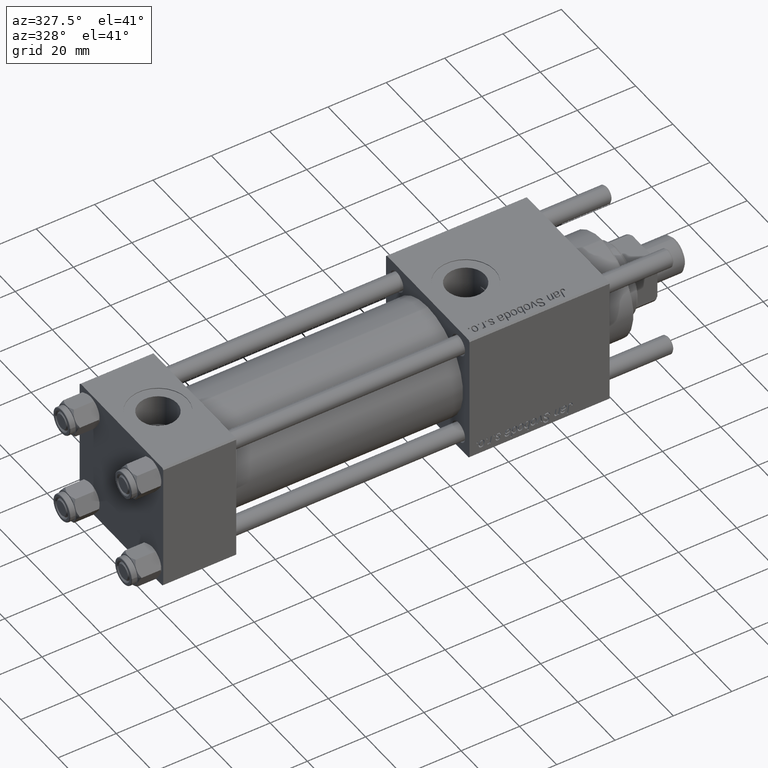
[diagram: clean part render]
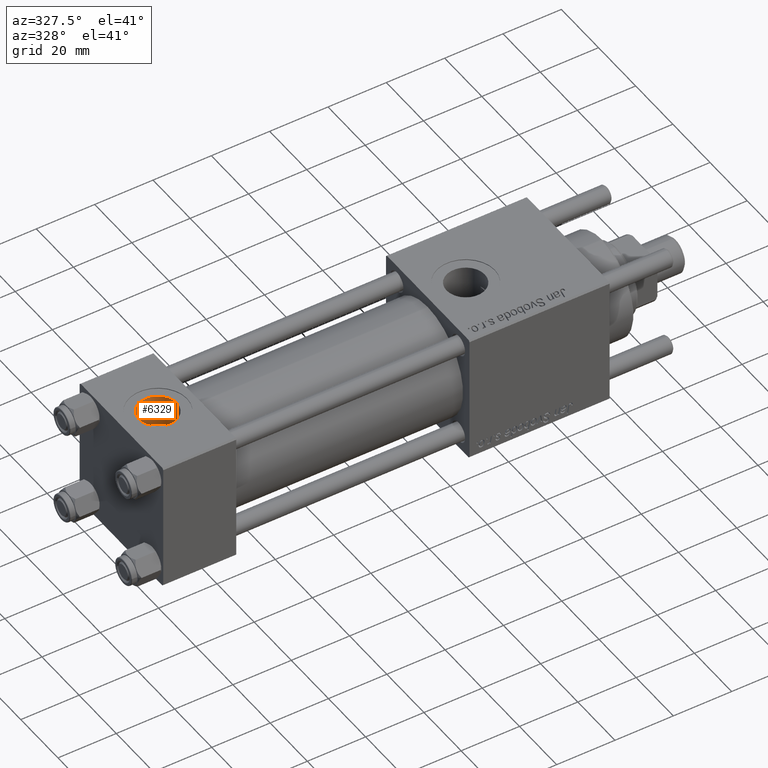
[diagram: same view with one face highlighted and labeled with its STEP entity id]
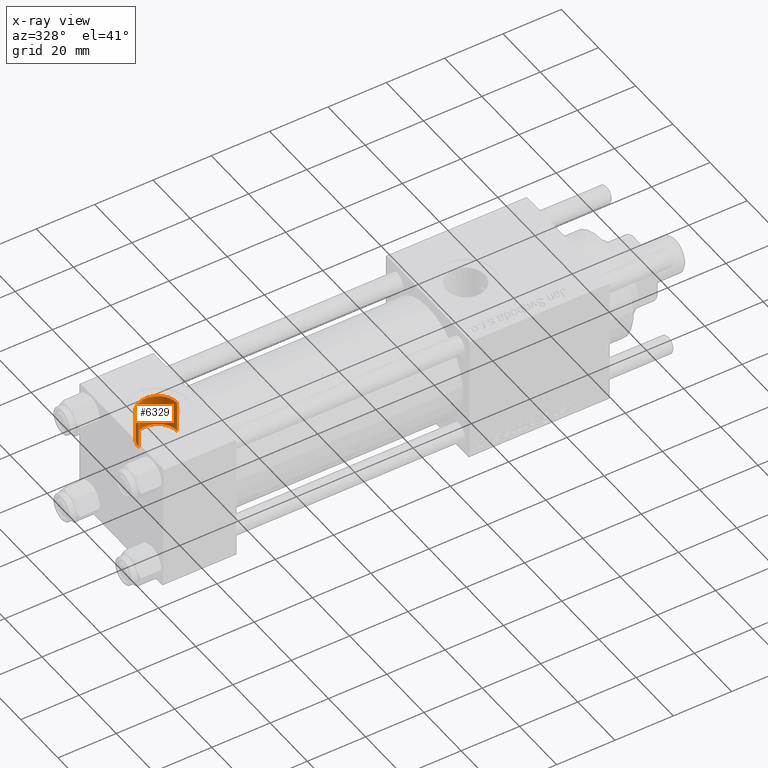
[diagram: x-ray of the same camera — body ghosted, the highlighted face saturated]
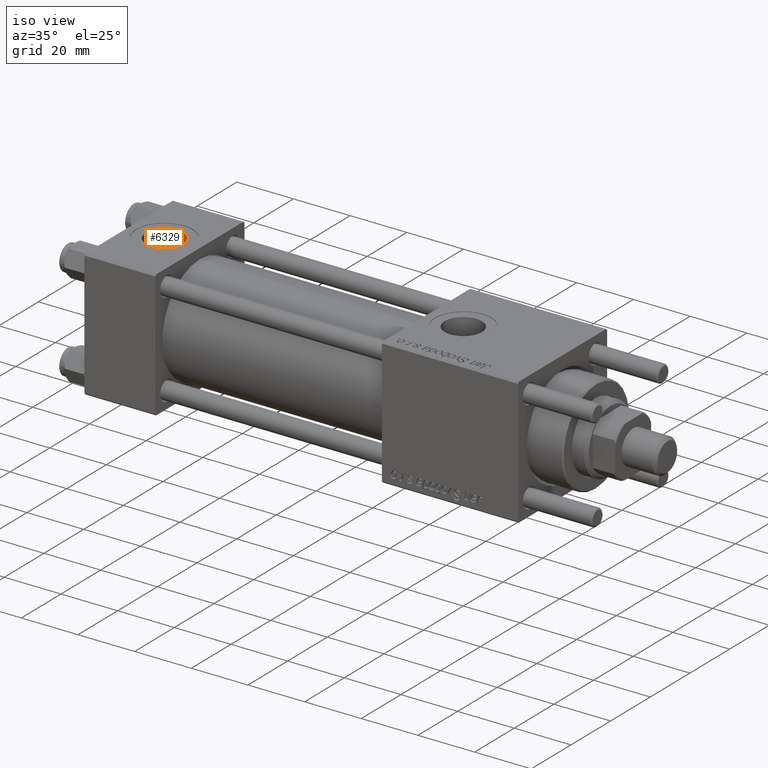
[diagram: same view with one face highlighted and labeled with its STEP entity id]
A machine part, auxiliary view. The second image highlights one B-rep face of the part: STEP entity #6329.
The next image is the same camera in x-ray: the body ghosted, the highlighted face saturated — about 0% of this face is hidden behind the body in this view.
A second angle (iso view) of the same face is appended — the face is thin or edge-on in the first view.
In plain terms, the highlighted cylindrical surface (edge-blend (fillet) strip) has radius 6.58 mm, axis along (0, 0, 1).
Its self-contained STEP definition (entity closure, byte-faithful):
#221 = EDGE_LOOP ( 'NONE', ( #28281, #9980, #48726, #20149 ) ) ;
#1496 = VERTEX_POINT ( 'NONE', #57708 ) ;
#2551 = EDGE_CURVE ( 'NONE', #40631, #46124, #3450, .T. ) ;
#3241 = CARTESIAN_POINT ( 'NONE',  ( 5.920000000000002593, -9.289058821378490386E-16, 11.66598726114649409 ) ) ;
#3450 = CIRCLE ( 'NONE', #39342, 6.579999999999999183 ) ;
#3536 = DIRECTION ( 'NONE',  ( -0.000000000000000000, -0.000000000000000000, -1.000000000000000000 ) ) ;
#4992 = LINE ( 'NONE', #18654, #24635 ) ;
#5332 = CYLINDRICAL_SURFACE ( 'NONE', #11335, 6.579999999999999183 ) ;
#6329 = ADVANCED_FACE ( 'NONE', ( #18993 ), #5332, .F. ) ;
#7632 = VECTOR ( 'NONE', #12879, 1000.000000000000000 ) ;
#8031 = LINE ( 'NONE', #55325, #7632 ) ;
#8721 = CARTESIAN_POINT ( 'NONE',  ( 12.50000000000000000, -1.734723475976807094E-15, 11.69999999999999929 ) ) ;
#9980 = ORIENTED_EDGE ( 'NONE', *, *, #2551, .T. ) ;
#11335 = AXIS2_PLACEMENT_3D ( 'NONE', #8721, #14448, #18109 ) ;
#12879 = DIRECTION ( 'NONE',  ( -0.000000000000000000, -0.000000000000000000, 1.000000000000000000 ) ) ;
#13838 = CARTESIAN_POINT ( 'NONE',  ( 12.50000000000000000, -1.734723475976807094E-15, 11.66598726114649409 ) ) ;
#14448 = DIRECTION ( 'NONE',  ( -0.000000000000000000, -0.000000000000000000, 1.000000000000000000 ) ) ;
#14995 = DIRECTION ( 'NONE',  ( -0.000000000000000000, -0.000000000000000000, 1.000000000000000000 ) ) ;
#16063 = CARTESIAN_POINT ( 'NONE',  ( 12.50000000000000000, -1.734723475976807094E-15, 22.30000000000000071 ) ) ;
#18109 = DIRECTION ( 'NONE',  ( 1.000000000000000000, 0.000000000000000000, 0.000000000000000000 ) ) ;
#18654 = CARTESIAN_POINT ( 'NONE',  ( 5.920000000000002593, -9.289058821378490386E-16, 11.69999999999999929 ) ) ;
#18993 = FACE_OUTER_BOUND ( 'NONE', #221, .T. ) ;
#19989 = CIRCLE ( 'NONE', #28693, 6.579999999999999183 ) ;
#20149 = ORIENTED_EDGE ( 'NONE', *, *, #46752, .T. ) ;
#20924 = DIRECTION ( 'NONE',  ( 0.000000000000000000, 0.000000000000000000, 1.000000000000000000 ) ) ;
#23236 = DIRECTION ( 'NONE',  ( 1.000000000000000000, 0.000000000000000000, 0.000000000000000000 ) ) ;
#24635 = VECTOR ( 'NONE', #14995, 1000.000000000000000 ) ;
#25804 = CARTESIAN_POINT ( 'NONE',  ( 5.920000000000002593, -9.289058821378490386E-16, 22.30000000000000071 ) ) ;
#27263 = DIRECTION ( 'NONE',  ( 1.000000000000000000, 0.000000000000000000, 0.000000000000000000 ) ) ;
#28281 = ORIENTED_EDGE ( 'NONE', *, *, #37388, .F. ) ;
#28693 = AXIS2_PLACEMENT_3D ( 'NONE', #16063, #20924, #27263 ) ;
#37388 = EDGE_CURVE ( 'NONE', #40631, #49353, #4992, .T. ) ;
#39342 = AXIS2_PLACEMENT_3D ( 'NONE', #13838, #3536, #23236 ) ;
#40631 = VERTEX_POINT ( 'NONE', #3241 ) ;
#46124 = VERTEX_POINT ( 'NONE', #60012 ) ;
#46752 = EDGE_CURVE ( 'NONE', #1496, #49353, #19989, .T. ) ;
#48726 = ORIENTED_EDGE ( 'NONE', *, *, #59870, .T. ) ;
#49353 = VERTEX_POINT ( 'NONE', #25804 ) ;
#55325 = CARTESIAN_POINT ( 'NONE',  ( 19.07999999999999829, -1.734723475976807094E-15, 11.69999999999999929 ) ) ;
#57708 = CARTESIAN_POINT ( 'NONE',  ( 19.07999999999999829, -1.734723475976807094E-15, 22.30000000000000071 ) ) ;
#59870 = EDGE_CURVE ( 'NONE', #46124, #1496, #8031, .T. ) ;
#60012 = CARTESIAN_POINT ( 'NONE',  ( 19.07999999999999829, -1.734723475976807094E-15, 11.66598726114649409 ) ) ;